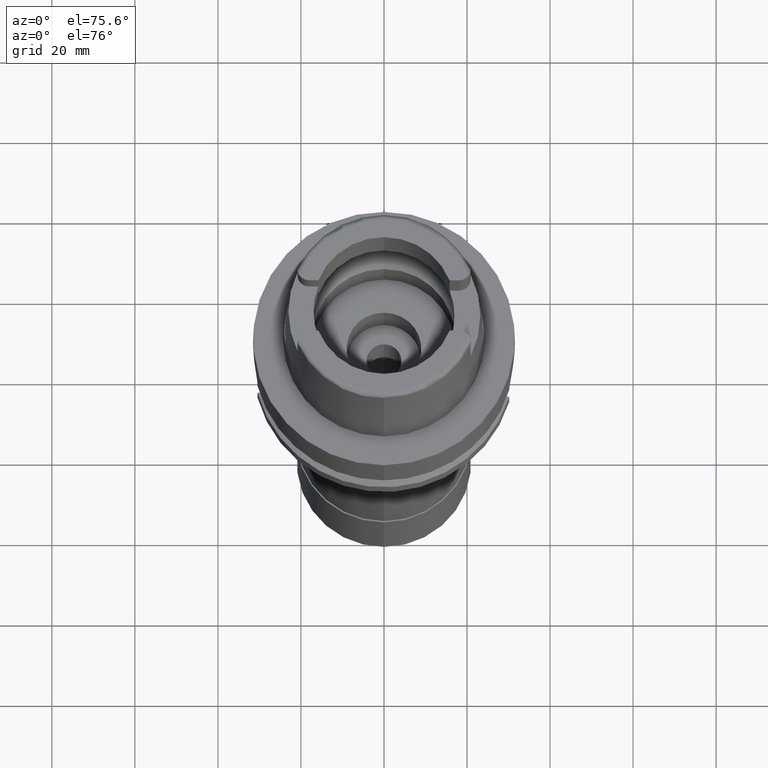
[diagram: clean part render]
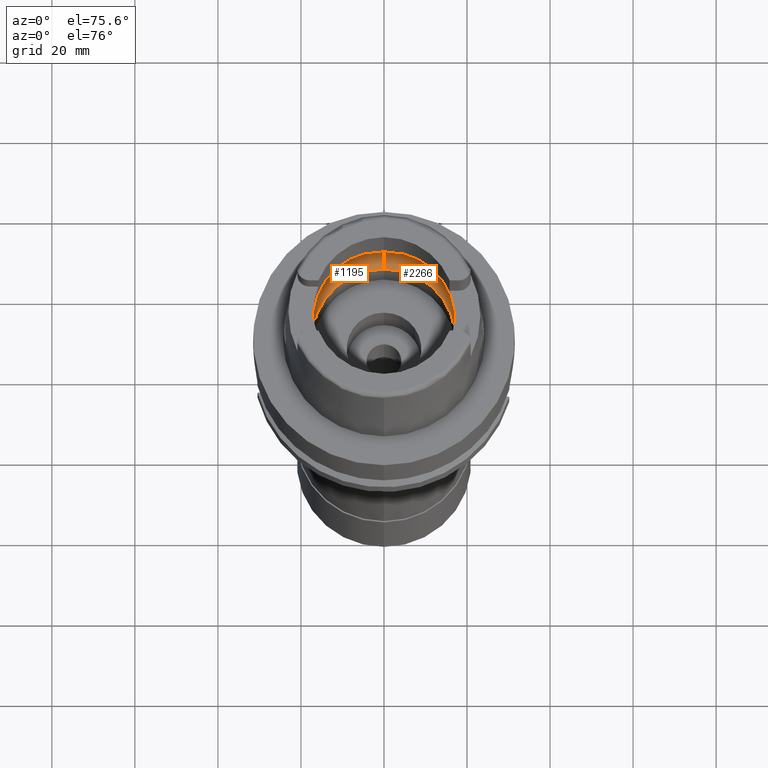
[diagram: same view with one multi-face feature highlighted, each face labeled with its STEP entity id]
A machine part, auxiliary view. The highlighted faces form ONE feature: a constant-radius fillet chain: 2 tangent blend faces with common blend radius 8 mm. The faces share edges in the B-rep.
Their STEP definitions:
[1] entity #1195 (Torus):
#138 = CARTESIAN_POINT ( 'NONE',  ( -19.92705277426681576, 1.287130182688421165, 5.477772523843790431 ) ) ;
#207 = AXIS2_PLACEMENT_3D ( 'NONE', #2486, #4611, #4584 ) ;
#377 = VERTEX_POINT ( 'NONE', #788 ) ;
#551 = CIRCLE ( 'NONE', #3552, 17.25000000000000000 ) ;
#610 = CARTESIAN_POINT ( 'NONE',  ( -19.84575864665999845, 2.479085262489999941, 6.186348233825000875 ) ) ;
#643 = DIRECTION ( 'NONE',  ( 0.0000000000000000000, 0.0000000000000000000, -1.000000000000000000 ) ) ;
#717 = CARTESIAN_POINT ( 'NONE',  ( -19.84575864665999845, -2.479085262491000030, 6.186348233825000875 ) ) ;
#767 = DIRECTION ( 'NONE',  ( 0.0000000000000000000, 0.0000000000000000000, -1.000000000000000000 ) ) ;
#788 = CARTESIAN_POINT ( 'NONE',  ( -19.94501428475999916, 0.0000000000000000000, 5.250000000000000000 ) ) ;
#793 = DIRECTION ( 'NONE',  ( 0.0000000000000000000, 1.000000000000000000, 0.0000000000000000000 ) ) ;
#894 = DIRECTION ( 'NONE',  ( 0.0000000000000000000, 0.0000000000000000000, 1.000000000000000000 ) ) ;
#951 = CARTESIAN_POINT ( 'NONE',  ( -19.90995254882344412, 1.795933974831515068, 5.670404978818013753 ) ) ;
#1109 = CARTESIAN_POINT ( 'NONE',  ( -19.86453683446996266, -2.328760709817148111, 6.053898515773700417 ) ) ;
#1165 = CARTESIAN_POINT ( 'NONE',  ( -19.92517003708521273, -1.343826440312797077, 5.499044281752649255 ) ) ;
#1195 = ADVANCED_FACE ( 'NONE', ( #3167 ), #3693, .F. ) ;
#1468 = CARTESIAN_POINT ( 'NONE',  ( 0.0000000000000000000, 0.0000000000000000000, 6.186348233825000875 ) ) ;
#1547 = CARTESIAN_POINT ( 'NONE',  ( -19.90653714044385936, -1.770134880955051226, 5.691950022312413537 ) ) ;
#1563 = DIRECTION ( 'NONE',  ( 1.000000000000000000, 0.0000000000000000000, 0.0000000000000000000 ) ) ;
#1688 = ORIENTED_EDGE ( 'NONE', *, *, #2398, .T. ) ;
#1793 = CIRCLE ( 'NONE', #4866, 20.00000000000000000 ) ;
#1808 = CARTESIAN_POINT ( 'NONE',  ( -19.94501428475999916, 0.0000000000000000000, 5.250000000000000000 ) ) ;
#1859 = CARTESIAN_POINT ( 'NONE',  ( -19.93654847024033927, 0.9262661514275534191, 5.364596242157149142 ) ) ;
#1860 = EDGE_CURVE ( 'NONE', #4215, #3622, #3733, .T. ) ;
#1972 = EDGE_CURVE ( 'NONE', #2945, #3714, #551, .T. ) ;
#2012 = CARTESIAN_POINT ( 'NONE',  ( 0.0000000000000000000, 20.00000000000000000, 6.186348233825000875 ) ) ;
#2070 = DIRECTION ( 'NONE',  ( 0.0000000000000000000, -1.000000000000000000, 0.0000000000000000000 ) ) ;
#2073 = DIRECTION ( 'NONE',  ( 0.0000000000000000000, 0.0000000000000000000, 1.000000000000000000 ) ) ;
#2140 = DIRECTION ( 'NONE',  ( 0.0000000000000000000, 1.000000000000000000, 0.0000000000000000000 ) ) ;
#2246 = CARTESIAN_POINT ( 'NONE',  ( -19.94501428476000271, 0.2480393703315448006, 5.249999999999999112 ) ) ;
#2275 = CARTESIAN_POINT ( 'NONE',  ( -19.93095498564698076, 1.158122524600810666, 5.432638017440244660 ) ) ;
#2314 = ORIENTED_EDGE ( 'NONE', *, *, #2768, .F. ) ;
#2376 = CARTESIAN_POINT ( 'NONE',  ( -19.88058468752640806, -2.158466029911068951, 5.925243478961304433 ) ) ;
#2398 = EDGE_CURVE ( 'NONE', #2945, #3622, #3907, .T. ) ;
#2415 = DIRECTION ( 'NONE',  ( 0.0000000000000000000, 0.6562500000000006661, -0.7545435292281016393 ) ) ;
#2448 = CARTESIAN_POINT ( 'NONE',  ( 0.0000000000000000000, 0.0000000000000000000, 6.186348233825000875 ) ) ;
#2486 = CARTESIAN_POINT ( 'NONE',  ( 0.0000000000000000000, -12.00000000000000000, 6.186348233825000875 ) ) ;
#2496 = ORIENTED_EDGE ( 'NONE', *, *, #4583, .F. ) ;
#2585 = CIRCLE ( 'NONE', #207, 7.999999999999992895 ) ;
#2701 = ORIENTED_EDGE ( 'NONE', *, *, #3701, .F. ) ;
#2768 = EDGE_CURVE ( 'NONE', #377, #4215, #4153, .T. ) ;
#2827 = AXIS2_PLACEMENT_3D ( 'NONE', #1468, #2073, #793 ) ;
#2839 = CARTESIAN_POINT ( 'NONE',  ( -19.92546218847456529, -1.335248582686434426, 5.495766530070138600 ) ) ;
#2890 = EDGE_LOOP ( 'NONE', ( #4357, #2701, #3930, #1688, #2971, #2314, #2496 ) ) ;
#2945 = VERTEX_POINT ( 'NONE', #4240 ) ;
#2971 = ORIENTED_EDGE ( 'NONE', *, *, #1860, .F. ) ;
#3019 = VERTEX_POINT ( 'NONE', #5213 ) ;
#3023 = B_SPLINE_CURVE_WITH_KNOTS ( 'NONE', 3,
 ( #717, #1109, #2376, #4023, #1547, #4407, #3219, #4906, #4078, #4931, #1165, #2839, #3383, #4652, #4622 ),
 .UNSPECIFIED., .F., .F.,
 ( 4, 2, 2, 1, 1, 1, 2, 2, 4 ),
 ( 0.0000000000000000000, 0.2500000000000016653, 0.3750000000000023870, 0.4375000000000028866, 0.4687500000000030531, 0.4843750000000031641, 0.4921875000000032196, 0.5000000000000032196, 1.000000000000000000 ),
 .UNSPECIFIED. ) ;
#3030 = AXIS2_PLACEMENT_3D ( 'NONE', #4005, #643, #4533 ) ;
#3063 = CARTESIAN_POINT ( 'NONE',  ( -19.92606541085463689, 1.317269455711140846, 5.488968463726680014 ) ) ;
#3167 = FACE_OUTER_BOUND ( 'NONE', #2890, .T. ) ;
#3219 = CARTESIAN_POINT ( 'NONE',  ( -19.91819175305377243, -1.528964846757111973, 5.574905751837347267 ) ) ;
#3284 = CARTESIAN_POINT ( 'NONE',  ( 0.0000000000000000000, 12.00000000000000000, 6.186348233825000875 ) ) ;
#3383 = CARTESIAN_POINT ( 'NONE',  ( -19.93856410866583317, -0.9461212226835923333, 5.348254255821970560 ) ) ;
#3552 = AXIS2_PLACEMENT_3D ( 'NONE', #4999, #894, #2140 ) ;
#3562 = CARTESIAN_POINT ( 'NONE',  ( -19.93292026401761419, 1.081805289724191210, 5.409024550128566311 ) ) ;
#3603 = VERTEX_POINT ( 'NONE', #5390 ) ;
#3622 = VERTEX_POINT ( 'NONE', #2012 ) ;
#3693 = TOROIDAL_SURFACE ( 'NONE', #2827, 12.00000000000000000, 8.000000000000000000 ) ;
#3701 = EDGE_CURVE ( 'NONE', #3714, #3603, #2585, .T. ) ;
#3714 = VERTEX_POINT ( 'NONE', #3832 ) ;
#3733 = CIRCLE ( 'NONE', #3030, 20.00000000000001421 ) ;
#3832 = CARTESIAN_POINT ( 'NONE',  ( 0.0000000000000000000, -17.25000000000000000, 0.1500000000000999700 ) ) ;
#3885 = CARTESIAN_POINT ( 'NONE',  ( -19.92590934067762731, 1.321967662511047470, 5.490731940949380885 ) ) ;
#3907 = CIRCLE ( 'NONE', #5329, 7.999999999999992895 ) ;
#3930 = ORIENTED_EDGE ( 'NONE', *, *, #1972, .F. ) ;
#3971 = CARTESIAN_POINT ( 'NONE',  ( -19.92839760417749062, 1.244563448290384899, 5.462382440187010246 ) ) ;
#4005 = CARTESIAN_POINT ( 'NONE',  ( 0.0000000000000000000, 0.0000000000000000000, 6.186348233825000875 ) ) ;
#4023 = CARTESIAN_POINT ( 'NONE',  ( -19.90056096498078375, -1.871180422678105693, 5.748256676446665381 ) ) ;
#4055 = CARTESIAN_POINT ( 'NONE',  ( -19.84575864665999845, 2.479085262489999941, 6.186348233825000875 ) ) ;
#4078 = CARTESIAN_POINT ( 'NONE',  ( -19.92390774200794112, -1.380028552273980136, 5.513104237275524788 ) ) ;
#4153 = B_SPLINE_CURVE_WITH_KNOTS ( 'NONE', 3,
 ( #1808, #2246, #4719, #4389, #1859, #3562, #2275, #3971, #138, #4771, #3063, #3885, #951, #4299, #610 ),
 .UNSPECIFIED., .F., .F.,
 ( 4, 2, 2, 1, 1, 1, 2, 2, 4 ),
 ( 0.0000000000000000000, 0.2500000000000037748, 0.3750000000000058287, 0.4375000000000067168, 0.4687500000000069944, 0.4843750000000072720, 0.4921875000000072720, 0.5000000000000072164, 1.000000000000000000 ),
 .UNSPECIFIED. ) ;
#4215 = VERTEX_POINT ( 'NONE', #4055 ) ;
#4240 = CARTESIAN_POINT ( 'NONE',  ( 0.0000000000000000000, 17.25000000000000000, 0.1500000000000999700 ) ) ;
#4299 = CARTESIAN_POINT ( 'NONE',  ( -19.88331748051938064, 2.178416478297318104, 5.921431458854276464 ) ) ;
#4357 = ORIENTED_EDGE ( 'NONE', *, *, #4892, .F. ) ;
#4389 = CARTESIAN_POINT ( 'NONE',  ( -19.93856414036406477, 0.8186926599981305674, 5.338707319452686839 ) ) ;
#4407 = CARTESIAN_POINT ( 'NONE',  ( -19.91447752810589833, -1.610669004317299313, 5.613000827215236299 ) ) ;
#4533 = DIRECTION ( 'NONE',  ( -0.9922879323327794543, 0.1239542631244973381, 0.0000000000000000000 ) ) ;
#4583 = EDGE_CURVE ( 'NONE', #3019, #377, #3023, .T. ) ;
#4584 = DIRECTION ( 'NONE',  ( 0.0000000000000000000, -0.6562500000000006661, -0.7545435292281016393 ) ) ;
#4611 = DIRECTION ( 'NONE',  ( -1.000000000000000000, 0.0000000000000000000, 0.0000000000000000000 ) ) ;
#4622 = CARTESIAN_POINT ( 'NONE',  ( -19.94501428475999916, 0.0000000000000000000, 5.250000000000000000 ) ) ;
#4652 = CARTESIAN_POINT ( 'NONE',  ( -19.94501428475999560, -0.4961209670605932209, 5.249999999999998224 ) ) ;
#4719 = CARTESIAN_POINT ( 'NONE',  ( -19.94340174866101734, 0.4850934535354030630, 5.274617952747172822 ) ) ;
#4771 = CARTESIAN_POINT ( 'NONE',  ( -19.92646224591025472, 1.305232515153943673, 5.484475949585862153 ) ) ;
#4866 = AXIS2_PLACEMENT_3D ( 'NONE', #2448, #767, #2070 ) ;
#4892 = EDGE_CURVE ( 'NONE', #3603, #3019, #1793, .T. ) ;
#4906 = CARTESIAN_POINT ( 'NONE',  ( -19.92207706994746985, -1.430236285583133204, 5.533216425421237261 ) ) ;
#4931 = CARTESIAN_POINT ( 'NONE',  ( -19.92466831866535770, -1.358331184285348270, 5.504646393194166265 ) ) ;
#4999 = CARTESIAN_POINT ( 'NONE',  ( 0.0000000000000000000, 0.0000000000000000000, 0.1500000000000999700 ) ) ;
#5213 = CARTESIAN_POINT ( 'NONE',  ( -19.84575864665999845, -2.479085262491000030, 6.186348233825000875 ) ) ;
#5329 = AXIS2_PLACEMENT_3D ( 'NONE', #3284, #1563, #2415 ) ;
#5390 = CARTESIAN_POINT ( 'NONE',  ( 0.0000000000000000000, -20.00000000000000000, 6.186348233825000875 ) ) ;
[2] entity #2266 (Torus):
#7 = CARTESIAN_POINT ( 'NONE',  ( 19.92705251603473471, -1.287137774195317608, 5.477775297526381593 ) ) ;
#94 = CARTESIAN_POINT ( 'NONE',  ( 0.0000000000000000000, 0.0000000000000000000, 6.186348233825000875 ) ) ;
#145 = CARTESIAN_POINT ( 'NONE',  ( 0.0000000000000000000, 0.0000000000000000000, 6.186348233825000875 ) ) ;
#207 = AXIS2_PLACEMENT_3D ( 'NONE', #2486, #4611, #4584 ) ;
#224 = CARTESIAN_POINT ( 'NONE',  ( 19.92546246839948410, 1.335240779489388130, 5.495763556830105756 ) ) ;
#250 = CARTESIAN_POINT ( 'NONE',  ( 19.88058486986654572, 2.158464112384509193, 5.925242031513535679 ) ) ;
#264 = AXIS2_PLACEMENT_3D ( 'NONE', #94, #4901, #5267 ) ;
#372 = VERTEX_POINT ( 'NONE', #1235 ) ;
#395 = CARTESIAN_POINT ( 'NONE',  ( 19.93095478351687788, -1.158129430943444449, 5.432640251379964980 ) ) ;
#507 = CARTESIAN_POINT ( 'NONE',  ( 19.94340172547762435, -0.4850964740021785904, 5.274618261423839272 ) ) ;
#617 = FACE_OUTER_BOUND ( 'NONE', #830, .T. ) ;
#644 = CARTESIAN_POINT ( 'NONE',  ( 19.94501428475999916, 0.0000000000000000000, 5.250000000000000000 ) ) ;
#830 = EDGE_LOOP ( 'NONE', ( #1865, #4654, #2941, #1352, #5150, #4858, #4109 ) ) ;
#1115 = DIRECTION ( 'NONE',  ( 0.0000000000000000000, 0.0000000000000000000, -1.000000000000000000 ) ) ;
#1179 = CARTESIAN_POINT ( 'NONE',  ( 19.90653740763088919, 1.770130309642983013, 5.691947549107391424 ) ) ;
#1202 = CARTESIAN_POINT ( 'NONE',  ( 0.0000000000000000000, 0.0000000000000000000, 0.1500000000000999700 ) ) ;
#1215 = CIRCLE ( 'NONE', #3664, 20.00000000000001421 ) ;
#1235 = CARTESIAN_POINT ( 'NONE',  ( 19.84575864665999845, -2.479085262491000030, 6.186348233825000875 ) ) ;
#1264 = CARTESIAN_POINT ( 'NONE',  ( 19.92646197918816497, -1.305240201015200885, 5.484478803106744849 ) ) ;
#1292 = CARTESIAN_POINT ( 'NONE',  ( 19.93292009014225385, -1.081811776603662567, 5.409026499425241497 ) ) ;
#1352 = ORIENTED_EDGE ( 'NONE', *, *, #5203, .F. ) ;
#1510 = CIRCLE ( 'NONE', #264, 20.00000000000000000 ) ;
#1563 = DIRECTION ( 'NONE',  ( 1.000000000000000000, 0.0000000000000000000, 0.0000000000000000000 ) ) ;
#1581 = DIRECTION ( 'NONE',  ( 0.9922879323327794543, -0.1239542631244973381, 0.0000000000000000000 ) ) ;
#1608 = DIRECTION ( 'NONE',  ( 0.0000000000000000000, 0.0000000000000000000, 1.000000000000000000 ) ) ;
#1671 = CARTESIAN_POINT ( 'NONE',  ( 19.84575864665999845, -2.479085262491000030, 6.186348233825000875 ) ) ;
#1865 = ORIENTED_EDGE ( 'NONE', *, *, #2431, .F. ) ;
#1927 = CARTESIAN_POINT ( 'NONE',  ( 19.94501428475999560, 0.4961178817713813860, 5.250000000000000888 ) ) ;
#2012 = CARTESIAN_POINT ( 'NONE',  ( 0.0000000000000000000, 20.00000000000000000, 6.186348233825000875 ) ) ;
#2035 = CARTESIAN_POINT ( 'NONE',  ( 19.90056121658070509, 1.871176557661653028, 5.748254428408765548 ) ) ;
#2094 = CARTESIAN_POINT ( 'NONE',  ( 19.90995224292280597, -1.795938310847502217, 5.670407811397693898 ) ) ;
#2121 = CARTESIAN_POINT ( 'NONE',  ( 19.92606513842726912, -1.317277204138124880, 5.488971370721959175 ) ) ;
#2266 = ADVANCED_FACE ( 'NONE', ( #617 ), #4350, .F. ) ;
#2361 = CARTESIAN_POINT ( 'NONE',  ( 19.92390802166061903, 1.380021155214873119, 5.513101308918829879 ) ) ;
#2398 = EDGE_CURVE ( 'NONE', #2945, #3622, #3907, .T. ) ;
#2415 = DIRECTION ( 'NONE',  ( 0.0000000000000000000, 0.6562500000000006661, -0.7545435292281016393 ) ) ;
#2431 = EDGE_CURVE ( 'NONE', #3997, #2672, #4343, .T. ) ;
#2486 = CARTESIAN_POINT ( 'NONE',  ( 0.0000000000000000000, -12.00000000000000000, 6.186348233825000875 ) ) ;
#2494 = CARTESIAN_POINT ( 'NONE',  ( 19.94501428475999916, 0.0000000000000000000, 5.250000000000000000 ) ) ;
#2585 = CIRCLE ( 'NONE', #207, 7.999999999999992895 ) ;
#2672 = VERTEX_POINT ( 'NONE', #644 ) ;
#2826 = CARTESIAN_POINT ( 'NONE',  ( 19.94501428475999916, 0.0000000000000000000, 5.250000000000000000 ) ) ;
#2876 = DIRECTION ( 'NONE',  ( 0.0000000000000000000, -1.000000000000000000, 0.0000000000000000000 ) ) ;
#2941 = ORIENTED_EDGE ( 'NONE', *, *, #2398, .F. ) ;
#2945 = VERTEX_POINT ( 'NONE', #4240 ) ;
#3017 = CARTESIAN_POINT ( 'NONE',  ( 19.94501428475999560, -0.2480409225904866288, 5.249999999999998224 ) ) ;
#3256 = CARTESIAN_POINT ( 'NONE',  ( 19.86453694063900954, 2.328759859908619223, 6.053897766926341184 ) ) ;
#3284 = CARTESIAN_POINT ( 'NONE',  ( 0.0000000000000000000, 12.00000000000000000, 6.186348233825000875 ) ) ;
#3292 = EDGE_CURVE ( 'NONE', #2672, #372, #3768, .T. ) ;
#3318 = CIRCLE ( 'NONE', #3759, 17.25000000000000000 ) ;
#3381 = AXIS2_PLACEMENT_3D ( 'NONE', #145, #3510, #3484 ) ;
#3450 = CARTESIAN_POINT ( 'NONE',  ( 19.84575864665999845, 2.479085262491000030, 6.186348233825000875 ) ) ;
#3484 = DIRECTION ( 'NONE',  ( 0.0000000000000000000, 1.000000000000000000, 0.0000000000000000000 ) ) ;
#3510 = DIRECTION ( 'NONE',  ( 0.0000000000000000000, 0.0000000000000000000, 1.000000000000000000 ) ) ;
#3603 = VERTEX_POINT ( 'NONE', #5390 ) ;
#3622 = VERTEX_POINT ( 'NONE', #2012 ) ;
#3664 = AXIS2_PLACEMENT_3D ( 'NONE', #4938, #1115, #1581 ) ;
#3696 = CARTESIAN_POINT ( 'NONE',  ( 19.92466859728581952, 1.358323626958147345, 5.504643456233413445 ) ) ;
#3701 = EDGE_CURVE ( 'NONE', #3714, #3603, #2585, .T. ) ;
#3714 = VERTEX_POINT ( 'NONE', #3832 ) ;
#3759 = AXIS2_PLACEMENT_3D ( 'NONE', #1202, #1608, #2876 ) ;
#3768 = B_SPLINE_CURVE_WITH_KNOTS ( 'NONE', 3,
 ( #2494, #3017, #507, #5095, #5120, #1292, #395, #4259, #7, #1264, #2121, #4703, #2094, #5450, #1671 ),
 .UNSPECIFIED., .F., .F.,
 ( 4, 2, 2, 1, 1, 1, 2, 2, 4 ),
 ( 0.0000000000000000000, 0.2499999999999987232, 0.3749999999999981126, 0.4374999999999977796, 0.4687499999999976130, 0.4843749999999973910, 0.4921874999999975020, 0.4999999999999975575, 1.000000000000000000 ),
 .UNSPECIFIED. ) ;
#3832 = CARTESIAN_POINT ( 'NONE',  ( 0.0000000000000000000, -17.25000000000000000, 0.1500000000000999700 ) ) ;
#3907 = CIRCLE ( 'NONE', #5329, 7.999999999999992895 ) ;
#3997 = VERTEX_POINT ( 'NONE', #3450 ) ;
#4007 = CARTESIAN_POINT ( 'NONE',  ( 19.91447780742437246, 1.610663291711310841, 5.612998104004511823 ) ) ;
#4042 = EDGE_CURVE ( 'NONE', #372, #3603, #1215, .T. ) ;
#4109 = ORIENTED_EDGE ( 'NONE', *, *, #3292, .F. ) ;
#4240 = CARTESIAN_POINT ( 'NONE',  ( 0.0000000000000000000, 17.25000000000000000, 0.1500000000000999700 ) ) ;
#4259 = CARTESIAN_POINT ( 'NONE',  ( 19.92839736527998795, -1.244570816102732236, 5.462385030248712248 ) ) ;
#4343 = B_SPLINE_CURVE_WITH_KNOTS ( 'NONE', 3,
 ( #4561, #3256, #250, #2035, #1179, #4007, #4891, #4917, #2361, #3696, #4944, #224, #5366, #1927, #2826 ),
 .UNSPECIFIED., .F., .F.,
 ( 4, 2, 2, 1, 1, 1, 2, 2, 4 ),
 ( 0.0000000000000000000, 0.2499999999999978906, 0.3749999999999969469, 0.4374999999999963363, 0.4687499999999959477, 0.4843749999999960587, 0.4921874999999960032, 0.4999999999999960032, 1.000000000000000000 ),
 .UNSPECIFIED. ) ;
#4350 = TOROIDAL_SURFACE ( 'NONE', #3381, 12.00000000000000000, 8.000000000000000000 ) ;
#4561 = CARTESIAN_POINT ( 'NONE',  ( 19.84575864665999845, 2.479085262491000030, 6.186348233825000875 ) ) ;
#4584 = DIRECTION ( 'NONE',  ( 0.0000000000000000000, -0.6562500000000006661, -0.7545435292281016393 ) ) ;
#4611 = DIRECTION ( 'NONE',  ( -1.000000000000000000, 0.0000000000000000000, 0.0000000000000000000 ) ) ;
#4654 = ORIENTED_EDGE ( 'NONE', *, *, #4793, .F. ) ;
#4703 = CARTESIAN_POINT ( 'NONE',  ( 19.92590906290987363, -1.321975527286320506, 5.490734903793806687 ) ) ;
#4793 = EDGE_CURVE ( 'NONE', #3622, #3997, #1510, .T. ) ;
#4858 = ORIENTED_EDGE ( 'NONE', *, *, #4042, .F. ) ;
#4891 = CARTESIAN_POINT ( 'NONE',  ( 19.91819203562567253, 1.528958543118313473, 5.574902925593662850 ) ) ;
#4901 = DIRECTION ( 'NONE',  ( 0.0000000000000000000, 0.0000000000000000000, -1.000000000000000000 ) ) ;
#4917 = CARTESIAN_POINT ( 'NONE',  ( 19.92207735139349367, 1.430229258461773956, 5.533213523230517517 ) ) ;
#4938 = CARTESIAN_POINT ( 'NONE',  ( 0.0000000000000000000, 0.0000000000000000000, 6.186348233825000875 ) ) ;
#4944 = CARTESIAN_POINT ( 'NONE',  ( 19.92517031495895097, 1.343818775761117967, 5.499041339644736404 ) ) ;
#5095 = CARTESIAN_POINT ( 'NONE',  ( 19.93856404763053547, -0.8186976556962597407, 5.338708415004484564 ) ) ;
#5120 = CARTESIAN_POINT ( 'NONE',  ( 19.93654834852757674, -0.9262717684427986820, 5.364597653862788640 ) ) ;
#5150 = ORIENTED_EDGE ( 'NONE', *, *, #3701, .T. ) ;
#5203 = EDGE_CURVE ( 'NONE', #3714, #2945, #3318, .T. ) ;
#5267 = DIRECTION ( 'NONE',  ( 0.0000000000000000000, 1.000000000000000000, 0.0000000000000000000 ) ) ;
#5329 = AXIS2_PLACEMENT_3D ( 'NONE', #3284, #1563, #2415 ) ;
#5366 = CARTESIAN_POINT ( 'NONE',  ( 19.93856420101220195, 0.9461154250117944642, 5.348253029309250728 ) ) ;
#5390 = CARTESIAN_POINT ( 'NONE',  ( 0.0000000000000000000, -20.00000000000000000, 6.186348233825000875 ) ) ;
#5450 = CARTESIAN_POINT ( 'NONE',  ( 19.88331726735226113, -2.178418184679663749, 5.921432962333624594 ) ) ;